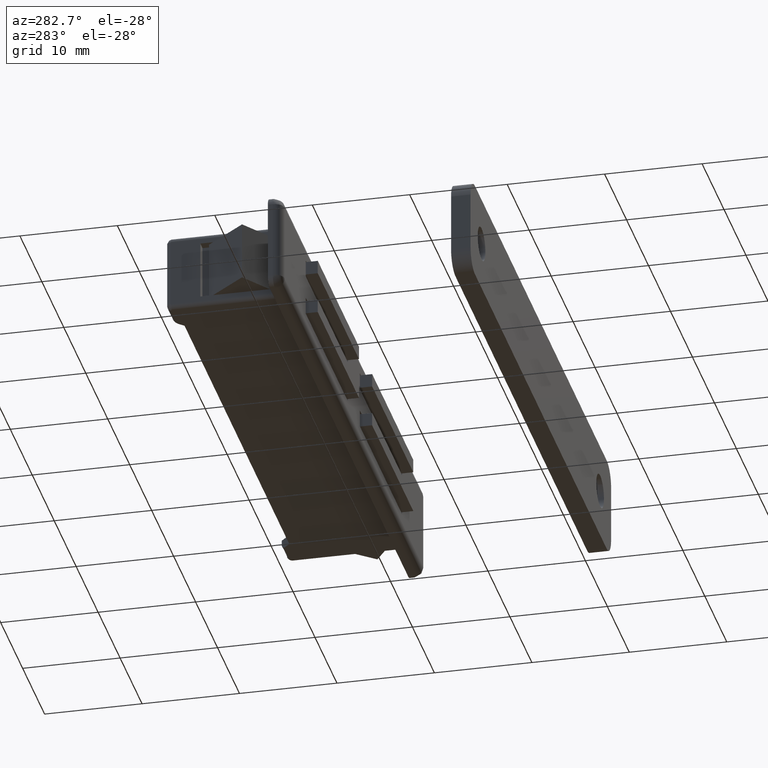
[diagram: clean part render]
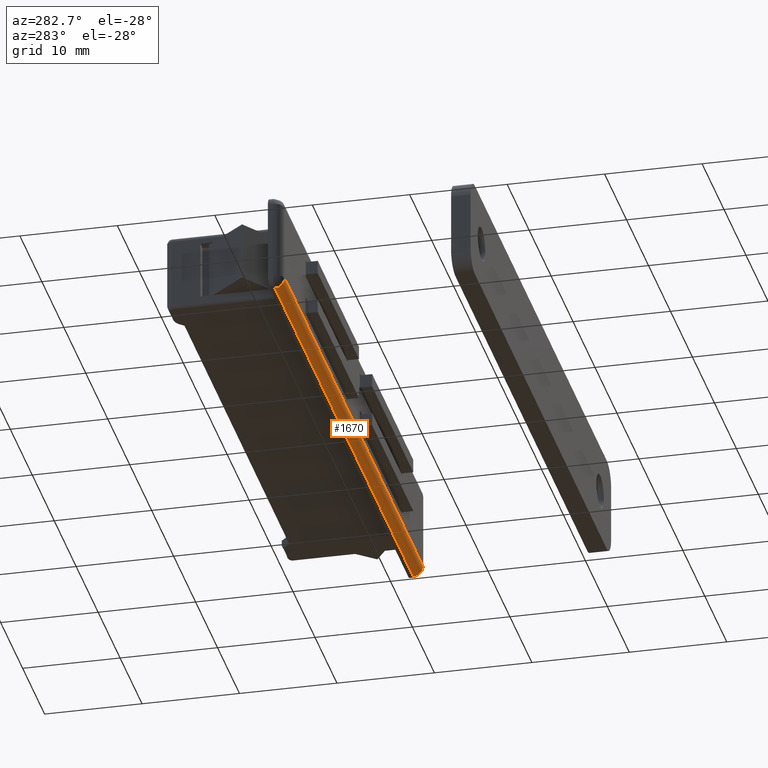
[diagram: same view with one face highlighted and labeled with its STEP entity id]
A machine part, auxiliary view. The second image highlights one B-rep face of the part: STEP entity #1670.
In plain terms, the highlighted face is a freeform B-spline surface patch.
Its self-contained STEP definition (entity closure, byte-faithful):
#1502=CARTESIAN_POINT('',(-31.500007000000000,-13.0,-4.0));
#1503=VERTEX_POINT('',#1502);
#1547=CARTESIAN_POINT('',(-31.500007471238899,-12.0,-4.999999999999890));
#1548=VERTEX_POINT('',#1547);
#1560=CARTESIAN_POINT('',(-31.500007471238899,-12.0,-4.999999999999890));
#1561=CARTESIAN_POINT('',(-31.500007471319691,-12.139111731592759,-5.000171438382819));
#1562=CARTESIAN_POINT('',(-31.500007445898099,-12.392588960689830,-4.946225213500492));
#1563=CARTESIAN_POINT('',(-31.500007358939801,-12.668715118693230,-4.761693649720709));
#1564=CARTESIAN_POINT('',(-31.500007263940411,-12.838255434032790,-4.560099266548068));
#1565=CARTESIAN_POINT('',(-31.500007150327090,-12.963375654893200,-4.319003870678685));
#1566=CARTESIAN_POINT('',(-31.500007057838129,-13.000111099994710,-4.122736337735114));
#1567=CARTESIAN_POINT('',(-31.500007000000000,-13.0,-4.0));
#1568=B_SPLINE_CURVE_WITH_KNOTS('',3,(#1560,#1561,#1562,#1563,#1564,#1565,#1566,#1567),.UNSPECIFIED.,.F.,.U.,(4,1,1,1,1,4),(0.000000166045310,0.417254842533831,0.760897717925798,0.981756487772143,1.202672631686898,1.570835744351507),.UNSPECIFIED.);
#1569=EDGE_CURVE('',#1548,#1503,#1568,.T.);
#1627=CARTESIAN_POINT('',(33.075004286780967,-12.999657324975560,-3.973823051692127));
#1628=CARTESIAN_POINT('',(-33.114382765189397,-12.999657324975560,-3.973823051692127));
#1629=CARTESIAN_POINT('',(33.075004286780974,-13.028492260166260,-5.074984800554719));
#1630=CARTESIAN_POINT('',(-33.114382765189397,-13.028492260166260,-5.074984800554719));
#1631=CARTESIAN_POINT('',(33.075004286780974,-11.929679924374023,-4.997524479380810));
#1632=CARTESIAN_POINT('',(-33.114382765189397,-11.929679924374023,-4.997524479380810));
#1640=(BOUNDED_SURFACE()B_SPLINE_SURFACE(1,2,((#1627,#1629,#1631),(#1628,#1630,#1632)),.UNSPECIFIED.,.F.,.F.,.U.)B_SPLINE_SURFACE_WITH_KNOTS((2,2),(3,3),(0.0,66.189387051970385),(0.0,0.994518632334191),.UNSPECIFIED.)GEOMETRIC_REPRESENTATION_ITEM()RATIONAL_B_SPLINE_SURFACE(((1.0,0.670944223154768,0.996392648609106),(1.0,0.670944223154768,0.996392648609106)))REPRESENTATION_ITEM('')SURFACE());
#1641=CARTESIAN_POINT('',(31.500004000000001,-12.0,-5.0));
#1642=VERTEX_POINT('',#1641);
#1643=CARTESIAN_POINT('',(31.500004000000001,-13.0,-4.0));
#1644=VERTEX_POINT('',#1643);
#1645=CARTESIAN_POINT('',(31.500004000000001,-12.0,-5.0));
#1646=CARTESIAN_POINT('',(31.500004000000029,-12.098175940731620,-5.000034627091218));
#1647=CARTESIAN_POINT('',(31.500003999999930,-12.294512883960831,-4.970865575217309));
#1648=CARTESIAN_POINT('',(31.500004000000079,-12.541223549202829,-4.854189218005103));
#1649=CARTESIAN_POINT('',(31.500003999999901,-12.730155632119059,-4.695170681029524));
#1650=CARTESIAN_POINT('',(31.500003999999930,-12.879707350692209,-4.498665994906857));
#1651=CARTESIAN_POINT('',(31.500004000000470,-12.977821127981880,-4.261804933890298));
#1652=CARTESIAN_POINT('',(31.500003999999539,-13.000011445259290,-4.081809314917586));
#1653=CARTESIAN_POINT('',(31.500004000000001,-13.0,-4.0));
#1654=B_SPLINE_CURVE_WITH_KNOTS('',3,(#1645,#1646,#1647,#1648,#1649,#1650,#1651,#1652,#1653),.UNSPECIFIED.,.F.,.U.,(4,1,1,1,1,1,4),(0.000000166045566,0.294525565057521,0.589079422624911,0.809938192471193,1.030857122194936,1.325396577355235,1.570835744351556),.UNSPECIFIED.);
#1655=EDGE_CURVE('',#1642,#1644,#1654,.T.);
#1656=ORIENTED_EDGE('',*,*,#1655,.T.);
#1657=CARTESIAN_POINT('',(-31.500007000000000,-13.0,-4.0));
#1658=CARTESIAN_POINT('',(31.500004000000001,-13.0,-4.0));
#1659=QUASI_UNIFORM_CURVE('',1,(#1657,#1658),.UNSPECIFIED.,.F.,.U.);
#1660=EDGE_CURVE('',#1503,#1644,#1659,.T.);
#1661=ORIENTED_EDGE('',*,*,#1660,.F.);
#1662=ORIENTED_EDGE('',*,*,#1569,.F.);
#1663=CARTESIAN_POINT('',(31.500004000000001,-12.0,-5.0));
#1664=CARTESIAN_POINT('',(-31.500007471238899,-12.0,-4.999999999999890));
#1665=QUASI_UNIFORM_CURVE('',1,(#1663,#1664),.UNSPECIFIED.,.F.,.U.);
#1666=EDGE_CURVE('',#1642,#1548,#1665,.T.);
#1667=ORIENTED_EDGE('',*,*,#1666,.F.);
#1668=EDGE_LOOP('',(#1656,#1661,#1662,#1667));
#1669=FACE_OUTER_BOUND('',#1668,.T.);
#1670=ADVANCED_FACE('',(#1669),#1640,.T.);